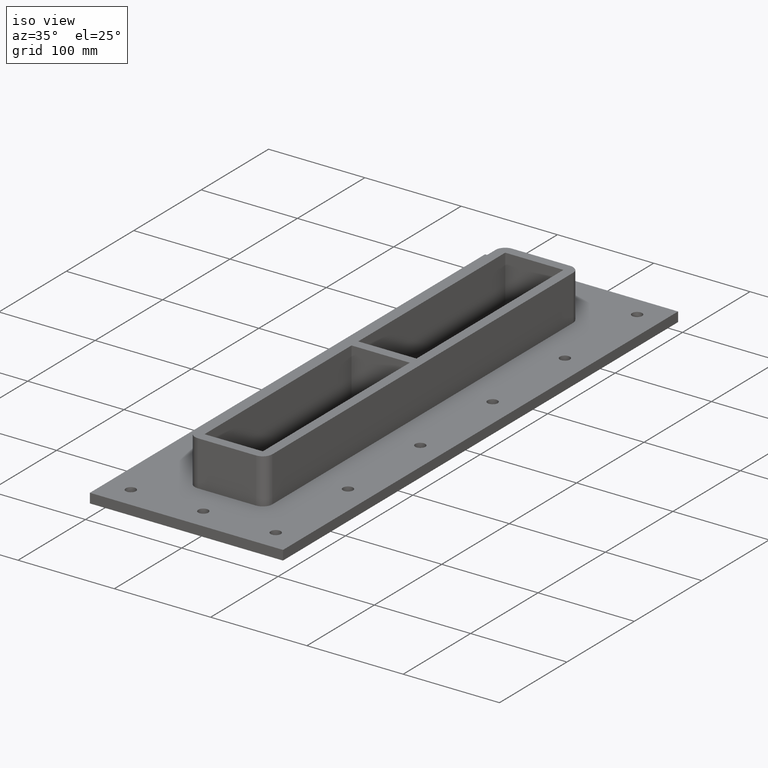
[diagram: clean part render]
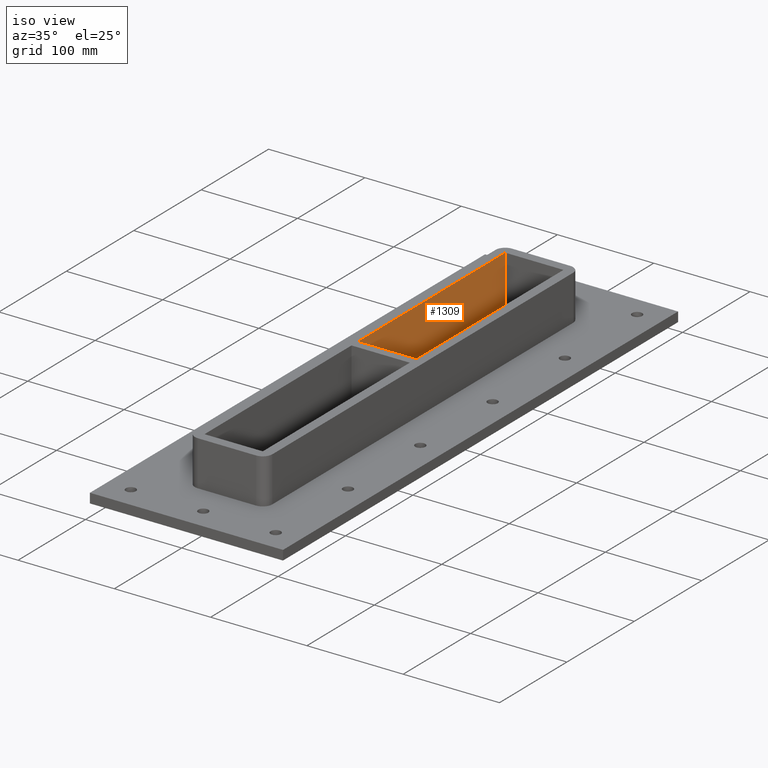
[diagram: same view with one face highlighted and labeled with its STEP entity id]
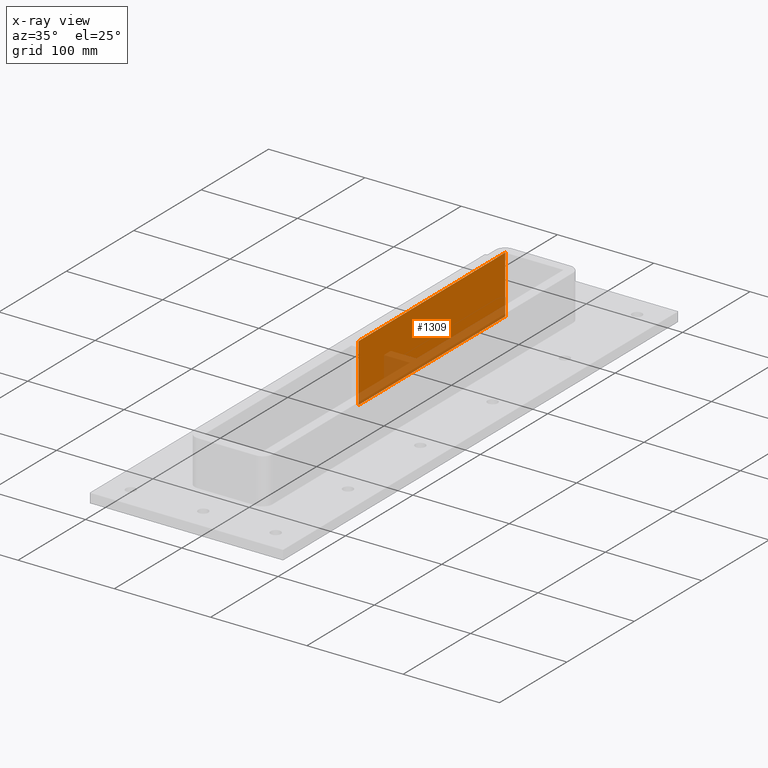
[diagram: x-ray of the same camera — body ghosted, the highlighted face saturated]
A machine part, iso view. The second image highlights one B-rep face of the part: STEP entity #1309.
The next image is the same camera in x-ray: the body ghosted, the highlighted face saturated — about 23% of this face is hidden behind the body in this view.
In plain terms, the highlighted planar face has unit normal (-1, 0, 0).
Its self-contained STEP definition (entity closure, byte-faithful):
#1102=CARTESIAN_POINT('',(-30.250000000000089,222.99999999999761,-30.0));
#1103=VERTEX_POINT('',#1102);
#1104=CARTESIAN_POINT('',(-30.250000000000018,4.99999999999762,-30.0));
#1105=VERTEX_POINT('',#1104);
#1106=CARTESIAN_POINT('',(-30.250000000000089,222.99999999999761,-30.0));
#1107=DIRECTION('',(0.0,-1.0,0.0));
#1108=VECTOR('',#1107,218.0);
#1109=LINE('',#1106,#1108);
#1110=EDGE_CURVE('',#1103,#1105,#1109,.T.);
#1279=CARTESIAN_POINT('',(-30.250000000000018,4.99999999999762,30.0));
#1280=DIRECTION('',(-1.0,0.0,0.0));
#1281=DIRECTION('',(0.0,1.0,0.0));
#1282=AXIS2_PLACEMENT_3D('',#1279,#1280,#1281);
#1283=PLANE('',#1282);
#1284=ORIENTED_EDGE('',*,*,#1110,.F.);
#1285=CARTESIAN_POINT('',(-30.250000000000089,222.99999999999761,30.0));
#1286=VERTEX_POINT('',#1285);
#1287=CARTESIAN_POINT('',(-30.250000000000089,222.99999999999761,30.0));
#1288=DIRECTION('',(0.0,0.0,-1.0));
#1289=VECTOR('',#1288,60.0);
#1290=LINE('',#1287,#1289);
#1291=EDGE_CURVE('',#1286,#1103,#1290,.T.);
#1292=ORIENTED_EDGE('',*,*,#1291,.F.);
#1293=CARTESIAN_POINT('',(-30.250000000000018,4.99999999999762,30.0));
#1294=VERTEX_POINT('',#1293);
#1295=CARTESIAN_POINT('',(-30.250000000000018,4.99999999999762,30.0));
#1296=DIRECTION('',(0.0,1.0,0.0));
#1297=VECTOR('',#1296,218.0);
#1298=LINE('',#1295,#1297);
#1299=EDGE_CURVE('',#1294,#1286,#1298,.T.);
#1300=ORIENTED_EDGE('',*,*,#1299,.F.);
#1301=CARTESIAN_POINT('',(-30.250000000000018,4.99999999999762,30.0));
#1302=DIRECTION('',(0.0,0.0,-1.0));
#1303=VECTOR('',#1302,60.0);
#1304=LINE('',#1301,#1303);
#1305=EDGE_CURVE('',#1294,#1105,#1304,.T.);
#1306=ORIENTED_EDGE('',*,*,#1305,.T.);
#1307=EDGE_LOOP('',(#1284,#1292,#1300,#1306));
#1308=FACE_OUTER_BOUND('',#1307,.T.);
#1309=ADVANCED_FACE('',(#1308),#1283,.F.);